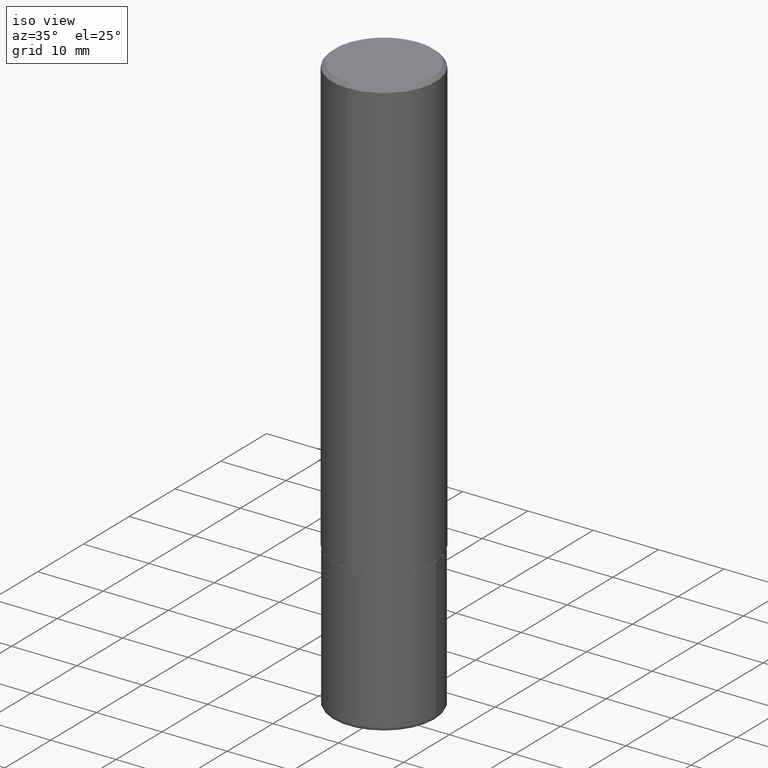
[diagram: clean part render]
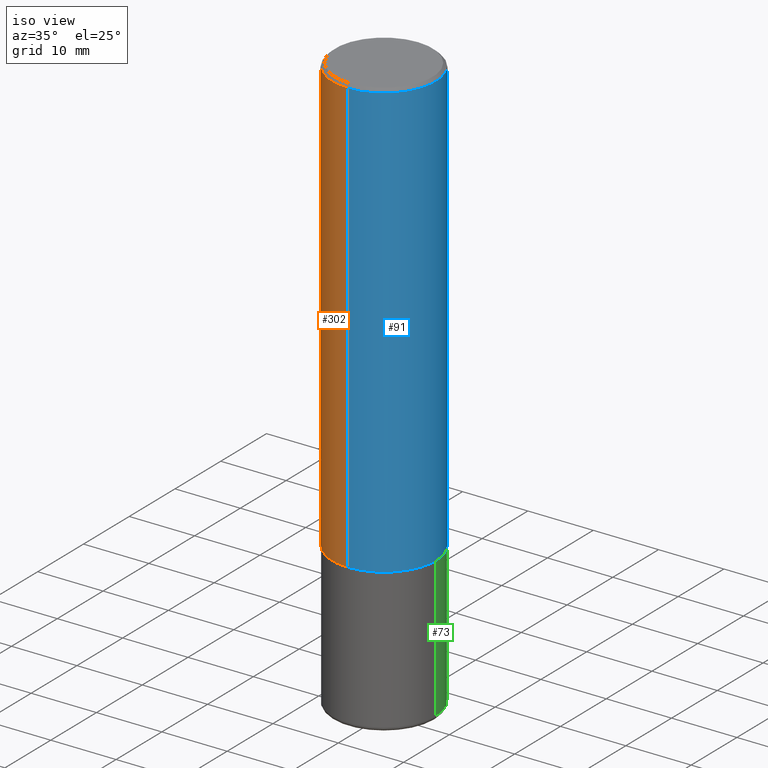
[diagram: same view with three faces highlighted in distinct colors, each labeled with its STEP entity id]
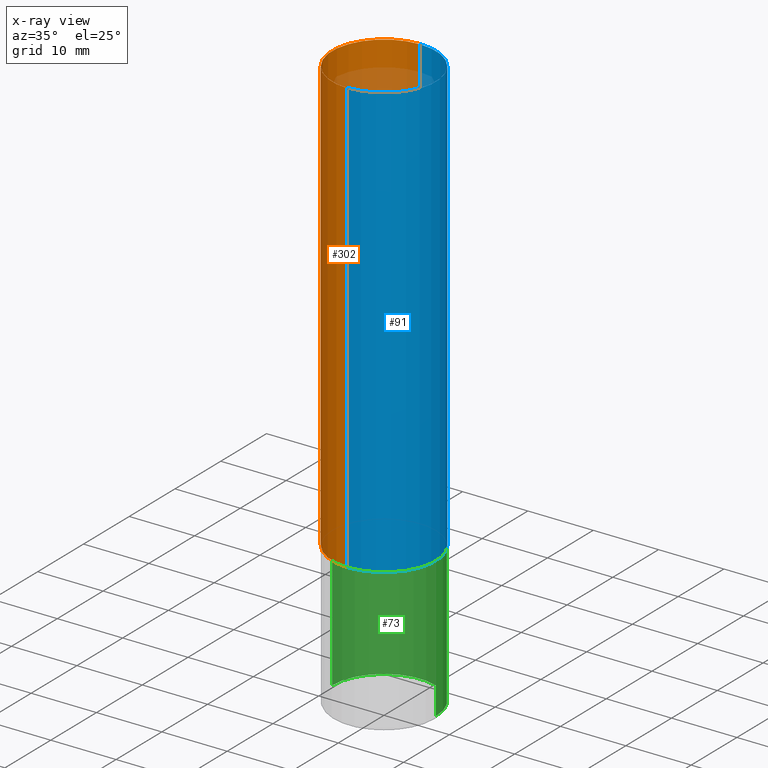
[diagram: x-ray of the same camera — body ghosted, the three highlighted faces saturated]
A machine part, iso view with three faces highlighted in distinct colors.
The next image is the same camera in x-ray (body ghosted, the three faces saturated) — at least one of them is partly hidden behind the body in this view.
Their STEP definitions:

[orange] entity #302 — the highlighted cylindrical surface (partial cylindrical patch) has radius 7.9375 mm, axis along (-0, 0, 1).
#3 = CARTESIAN_POINT ( 'NONE',  ( -2.143905624303602824E-15, -0.3125000000000000555, -0.01999999999999897693 ) ) ;
#11 = DIRECTION ( 'NONE',  ( -2.445724373662476739E-29, 3.491115351669597153E-15, 1.000000000000000000 ) ) ;
#14 = DIRECTION ( 'NONE',  ( -2.445724373662476739E-29, 3.491115351669597153E-15, 1.000000000000000000 ) ) ;
#17 = VERTEX_POINT ( 'NONE', #403 ) ;
#23 = EDGE_CURVE ( 'NONE', #399, #17, #380, .T. ) ;
#46 = ORIENTED_EDGE ( 'NONE', *, *, #23, .F. ) ;
#52 = EDGE_CURVE ( 'NONE', #179, #293, #206, .T. ) ;
#64 = DIRECTION ( 'NONE',  ( -6.982962677686265133E-15, -1.000000000000000000, 3.491115351669596759E-15 ) ) ;
#66 = CARTESIAN_POINT ( 'NONE',  ( 0.000000000000000000, 0.000000000000000000, 0.000000000000000000 ) ) ;
#70 = AXIS2_PLACEMENT_3D ( 'NONE', #153, #333, #326 ) ;
#84 = ORIENTED_EDGE ( 'NONE', *, *, #52, .T. ) ;
#142 = DIRECTION ( 'NONE',  ( -6.982962677686265133E-15, -1.000000000000000000, 3.496765431890256920E-15 ) ) ;
#144 = VECTOR ( 'NONE', #11, 39.37007874015748143 ) ;
#147 = EDGE_LOOP ( 'NONE', ( #46, #312, #84, #278 ) ) ;
#153 = CARTESIAN_POINT ( 'NONE',  ( 6.429809378358652925E-29, -9.178142259539371563E-15, -2.629000000000000448 ) ) ;
#171 = CARTESIAN_POINT ( 'NONE',  ( 2.220446049250313475E-15, 0.3125000000000001665, -1.090973547396749554E-15 ) ) ;
#179 = VERTEX_POINT ( 'NONE', #192 ) ;
#186 = CARTESIAN_POINT ( 'NONE',  ( -2.182175836776959136E-15, -0.3125000000000001665, 1.090973547396749554E-15 ) ) ;
#192 = CARTESIAN_POINT ( 'NONE',  ( -2.182175836776895633E-15, -0.3125000000000094369, -2.628999999999999115 ) ) ;
#206 = LINE ( 'NONE', #186, #394 ) ;
#209 = CARTESIAN_POINT ( 'NONE',  ( 4.891448747324970047E-31, -6.982230703339217380E-17, -0.02000000000000006981 ) ) ;
#226 = EDGE_CURVE ( 'NONE', #399, #179, #255, .T. ) ;
#255 = CIRCLE ( 'NONE', #70, 0.3125000000000002776 ) ;
#263 = DIRECTION ( 'NONE',  ( -2.445724373662476739E-29, 3.491115351669597153E-15, 1.000000000000000000 ) ) ;
#278 = ORIENTED_EDGE ( 'NONE', *, *, #378, .F. ) ;
#293 = VERTEX_POINT ( 'NONE', #3 ) ;
#294 = CIRCLE ( 'NONE', #401, 0.3125000000000000000 ) ;
#302 = ADVANCED_FACE ( 'NONE', ( #361 ), #366, .T. ) ;
#309 = AXIS2_PLACEMENT_3D ( 'NONE', #66, #263, #64 ) ;
#312 = ORIENTED_EDGE ( 'NONE', *, *, #226, .T. ) ;
#325 = DIRECTION ( 'NONE',  ( -2.445724373662476739E-29, 3.491115351669597153E-15, 1.000000000000000000 ) ) ;
#326 = DIRECTION ( 'NONE',  ( -6.982962677686265922E-15, -1.000000000000000000, 3.496765431890253764E-15 ) ) ;
#333 = DIRECTION ( 'NONE',  ( -2.445724373662476739E-29, 3.491115351669597153E-15, 1.000000000000000000 ) ) ;
#361 = FACE_OUTER_BOUND ( 'NONE', #147, .T. ) ;
#366 = CYLINDRICAL_SURFACE ( 'NONE', #309, 0.3125000000000001665 ) ;
#378 = EDGE_CURVE ( 'NONE', #17, #293, #294, .T. ) ;
#380 = LINE ( 'NONE', #171, #144 ) ;
#394 = VECTOR ( 'NONE', #325, 39.37007874015748143 ) ;
#399 = VERTEX_POINT ( 'NONE', #407 ) ;
#401 = AXIS2_PLACEMENT_3D ( 'NONE', #209, #14, #142 ) ;
#403 = CARTESIAN_POINT ( 'NONE',  ( 2.182175836776958741E-15, 0.3124999999999999445, -0.02000000000000116268 ) ) ;
#407 = CARTESIAN_POINT ( 'NONE',  ( 2.220446049250346607E-15, 0.3124999999999911182, -2.629000000000001336 ) ) ;

[blue] entity #91 — the highlighted cylindrical surface (partial cylindrical patch) has radius 7.9375 mm, axis along (-0, 0, 1).
#3 = CARTESIAN_POINT ( 'NONE',  ( -2.143905624303602824E-15, -0.3125000000000000555, -0.01999999999999897693 ) ) ;
#11 = DIRECTION ( 'NONE',  ( -2.445724373662476739E-29, 3.491115351669597153E-15, 1.000000000000000000 ) ) ;
#17 = VERTEX_POINT ( 'NONE', #403 ) ;
#23 = EDGE_CURVE ( 'NONE', #399, #17, #380, .T. ) ;
#36 = CARTESIAN_POINT ( 'NONE',  ( 4.891448747324970047E-31, -6.982230703339217380E-17, -0.02000000000000006981 ) ) ;
#48 = ORIENTED_EDGE ( 'NONE', *, *, #52, .F. ) ;
#52 = EDGE_CURVE ( 'NONE', #179, #293, #206, .T. ) ;
#62 = CIRCLE ( 'NONE', #364, 0.3125000000000002776 ) ;
#72 = DIRECTION ( 'NONE',  ( -2.445724373662476739E-29, 3.491115351669597153E-15, 1.000000000000000000 ) ) ;
#82 = AXIS2_PLACEMENT_3D ( 'NONE', #318, #355, #122 ) ;
#91 = ADVANCED_FACE ( 'NONE', ( #221 ), #253, .T. ) ;
#122 = DIRECTION ( 'NONE',  ( -6.982962677686265133E-15, -1.000000000000000000, 3.491115351669596759E-15 ) ) ;
#138 = AXIS2_PLACEMENT_3D ( 'NONE', #36, #391, #398 ) ;
#144 = VECTOR ( 'NONE', #11, 39.37007874015748143 ) ;
#171 = CARTESIAN_POINT ( 'NONE',  ( 2.220446049250313475E-15, 0.3125000000000001665, -1.090973547396749554E-15 ) ) ;
#179 = VERTEX_POINT ( 'NONE', #192 ) ;
#186 = CARTESIAN_POINT ( 'NONE',  ( -2.182175836776959136E-15, -0.3125000000000001665, 1.090973547396749554E-15 ) ) ;
#192 = CARTESIAN_POINT ( 'NONE',  ( -2.182175836776895633E-15, -0.3125000000000094369, -2.628999999999999115 ) ) ;
#201 = DIRECTION ( 'NONE',  ( -6.982962677686265922E-15, -1.000000000000000000, 3.496765431890253764E-15 ) ) ;
#203 = EDGE_LOOP ( 'NONE', ( #379, #240, #392, #48 ) ) ;
#206 = LINE ( 'NONE', #186, #394 ) ;
#221 = FACE_OUTER_BOUND ( 'NONE', #203, .T. ) ;
#235 = CARTESIAN_POINT ( 'NONE',  ( 6.429809378358652925E-29, -9.178142259539371563E-15, -2.629000000000000448 ) ) ;
#240 = ORIENTED_EDGE ( 'NONE', *, *, #23, .T. ) ;
#253 = CYLINDRICAL_SURFACE ( 'NONE', #82, 0.3125000000000001665 ) ;
#262 = CIRCLE ( 'NONE', #138, 0.3125000000000000000 ) ;
#293 = VERTEX_POINT ( 'NONE', #3 ) ;
#296 = EDGE_CURVE ( 'NONE', #293, #17, #262, .T. ) ;
#318 = CARTESIAN_POINT ( 'NONE',  ( 0.000000000000000000, 0.000000000000000000, 0.000000000000000000 ) ) ;
#325 = DIRECTION ( 'NONE',  ( -2.445724373662476739E-29, 3.491115351669597153E-15, 1.000000000000000000 ) ) ;
#355 = DIRECTION ( 'NONE',  ( -2.445724373662476739E-29, 3.491115351669597153E-15, 1.000000000000000000 ) ) ;
#364 = AXIS2_PLACEMENT_3D ( 'NONE', #235, #72, #201 ) ;
#373 = EDGE_CURVE ( 'NONE', #179, #399, #62, .T. ) ;
#379 = ORIENTED_EDGE ( 'NONE', *, *, #373, .T. ) ;
#380 = LINE ( 'NONE', #171, #144 ) ;
#391 = DIRECTION ( 'NONE',  ( -2.445724373662476739E-29, 3.491115351669597153E-15, 1.000000000000000000 ) ) ;
#392 = ORIENTED_EDGE ( 'NONE', *, *, #296, .F. ) ;
#394 = VECTOR ( 'NONE', #325, 39.37007874015748143 ) ;
#398 = DIRECTION ( 'NONE',  ( -6.982962677686265133E-15, -1.000000000000000000, 3.496765431890256920E-15 ) ) ;
#399 = VERTEX_POINT ( 'NONE', #407 ) ;
#403 = CARTESIAN_POINT ( 'NONE',  ( 2.182175836776958741E-15, 0.3124999999999999445, -0.02000000000000116268 ) ) ;
#407 = CARTESIAN_POINT ( 'NONE',  ( 2.220446049250346607E-15, 0.3124999999999911182, -2.629000000000001336 ) ) ;

[green] entity #73 — the highlighted cylindrical surface (partial cylindrical patch) has radius 7.9375 mm, axis along (-0, 0, 1).
#13 = VECTOR ( 'NONE', #416, 39.37007874015748143 ) ;
#15 = VERTEX_POINT ( 'NONE', #120 ) ;
#24 = DIRECTION ( 'NONE',  ( 1.000000000000000000, -6.982962677686264344E-15, 0.000000000000000000 ) ) ;
#29 = DIRECTION ( 'NONE',  ( 1.000000000000000000, -6.982962677686266711E-15, 4.876176775795936353E-29 ) ) ;
#50 = CARTESIAN_POINT ( 'NONE',  ( 8.498004101493349225E-29, -1.213289765247992785E-14, -3.474999999999999201 ) ) ;
#59 = EDGE_CURVE ( 'NONE', #15, #181, #286, .T. ) ;
#73 = ADVANCED_FACE ( 'NONE', ( #383 ), #127, .T. ) ;
#104 = CARTESIAN_POINT ( 'NONE',  ( -0.3125000000000000000, -8.437300737568386669E-15, -2.629999999999999893 ) ) ;
#110 = VECTOR ( 'NONE', #390, 39.37007874015748143 ) ;
#117 = AXIS2_PLACEMENT_3D ( 'NONE', #369, #339, #244 ) ;
#120 = CARTESIAN_POINT ( 'NONE',  ( 0.3124999999999997224, -1.431507348925688462E-14, -3.474999999999999201 ) ) ;
#123 = CIRCLE ( 'NONE', #324, 0.3124999999999999445 ) ;
#127 = CYLINDRICAL_SURFACE ( 'NONE', #220, 0.3125000000000000000 ) ;
#129 = CARTESIAN_POINT ( 'NONE',  ( 0.3125000000000000000, -2.182175836776958347E-15, 1.523805242436230075E-29 ) ) ;
#133 = ORIENTED_EDGE ( 'NONE', *, *, #215, .T. ) ;
#181 = VERTEX_POINT ( 'NONE', #250 ) ;
#184 = DIRECTION ( 'NONE',  ( -2.445468806185136597E-29, 3.491481338843145583E-15, 1.000000000000000000 ) ) ;
#200 = CARTESIAN_POINT ( 'NONE',  ( -0.3124999999999997224, -9.912451603229616350E-15, -3.474999999999999201 ) ) ;
#215 = EDGE_CURVE ( 'NONE', #15, #283, #123, .T. ) ;
#220 = AXIS2_PLACEMENT_3D ( 'NONE', #224, #256, #29 ) ;
#224 = CARTESIAN_POINT ( 'NONE',  ( 0.000000000000000000, 0.000000000000000000, 0.000000000000000000 ) ) ;
#244 = DIRECTION ( 'NONE',  ( 1.000000000000000000, -6.982962677686269077E-15, 0.000000000000000000 ) ) ;
#245 = EDGE_LOOP ( 'NONE', ( #133, #342, #280, #307 ) ) ;
#250 = CARTESIAN_POINT ( 'NONE',  ( 0.3125000000000000000, -1.136477175793443157E-14, -2.629999999999999893 ) ) ;
#256 = DIRECTION ( 'NONE',  ( -2.445468806185136597E-29, 3.491481338843145583E-15, 1.000000000000000000 ) ) ;
#258 = EDGE_CURVE ( 'NONE', #283, #372, #393, .T. ) ;
#280 = ORIENTED_EDGE ( 'NONE', *, *, #417, .F. ) ;
#283 = VERTEX_POINT ( 'NONE', #200 ) ;
#286 = LINE ( 'NONE', #129, #13 ) ;
#303 = CIRCLE ( 'NONE', #117, 0.3125000000000000000 ) ;
#307 = ORIENTED_EDGE ( 'NONE', *, *, #59, .F. ) ;
#324 = AXIS2_PLACEMENT_3D ( 'NONE', #50, #184, #24 ) ;
#328 = CARTESIAN_POINT ( 'NONE',  ( -0.3125000000000000000, 2.220446049250313081E-15, -1.537167215704658232E-29 ) ) ;
#339 = DIRECTION ( 'NONE',  ( -2.445468806185136597E-29, 3.491481338843145583E-15, 1.000000000000000000 ) ) ;
#342 = ORIENTED_EDGE ( 'NONE', *, *, #258, .T. ) ;
#369 = CARTESIAN_POINT ( 'NONE',  ( 6.431582960266909339E-29, -9.182595921157471648E-15, -2.629999999999999893 ) ) ;
#372 = VERTEX_POINT ( 'NONE', #104 ) ;
#383 = FACE_OUTER_BOUND ( 'NONE', #245, .T. ) ;
#390 = DIRECTION ( 'NONE',  ( -2.445468806185136877E-29, 3.491481338843145188E-15, 1.000000000000000000 ) ) ;
#393 = LINE ( 'NONE', #328, #110 ) ;
#416 = DIRECTION ( 'NONE',  ( -2.445468806185136877E-29, 3.491481338843145188E-15, 1.000000000000000000 ) ) ;
#417 = EDGE_CURVE ( 'NONE', #181, #372, #303, .T. ) ;